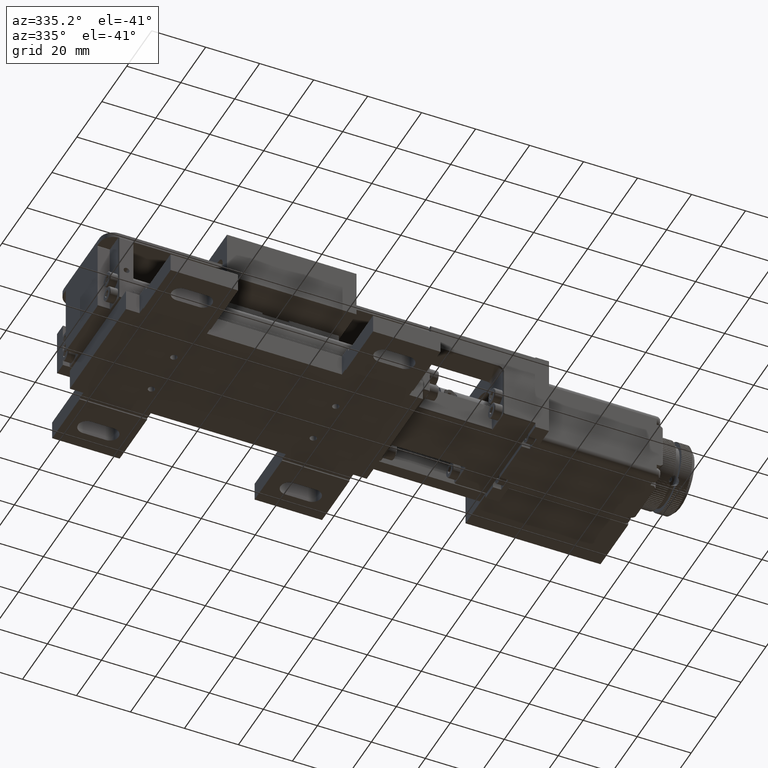
[diagram: clean part render]
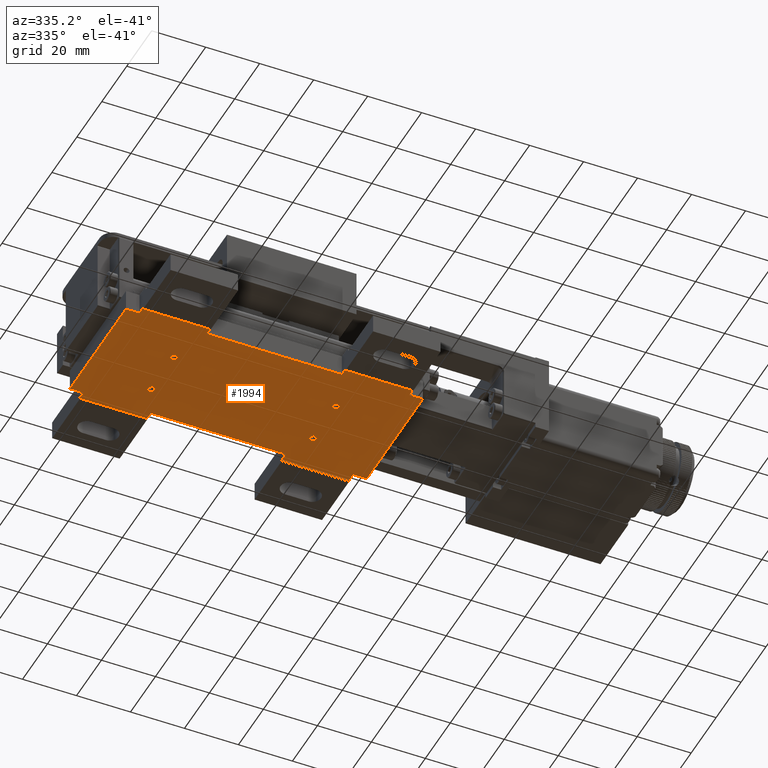
[diagram: same view with one face highlighted and labeled with its STEP entity id]
A machine part, auxiliary view. The second image highlights one B-rep face of the part: STEP entity #1994.
In plain terms, the highlighted planar face has unit normal (0, 0, -1).
Its self-contained STEP definition (entity closure, byte-faithful):
#25=FACE_BOUND('',#6651,.T.);
#26=FACE_BOUND('',#6652,.T.);
#27=FACE_BOUND('',#6653,.T.);
#28=FACE_BOUND('',#6654,.T.);
#526=PLANE('',#41079);
#1994=ADVANCED_FACE('',(#4317,#25,#26,#27,#28),#526,.T.);
#4317=FACE_OUTER_BOUND('',#6650,.T.);
#6650=EDGE_LOOP('',(#9429,#9430,#9431,#9432,#9433,#9434,#9435,#9436,#9437,
#9438,#9439,#9440,#9441,#9442,#9443,#9444,#9445,#9446,#9447,#9448));
#6651=EDGE_LOOP('',(#9449,#9450));
#6652=EDGE_LOOP('',(#9451,#9452));
#6653=EDGE_LOOP('',(#9453,#9454));
#6654=EDGE_LOOP('',(#9455,#9456));
#9429=ORIENTED_EDGE('',*,*,#22715,.F.);
#9430=ORIENTED_EDGE('',*,*,#22703,.F.);
#9431=ORIENTED_EDGE('',*,*,#22709,.T.);
#9432=ORIENTED_EDGE('',*,*,#22716,.F.);
#9433=ORIENTED_EDGE('',*,*,#22717,.F.);
#9434=ORIENTED_EDGE('',*,*,#22698,.F.);
#9435=ORIENTED_EDGE('',*,*,#22707,.T.);
#9436=ORIENTED_EDGE('',*,*,#22718,.F.);
#9437=ORIENTED_EDGE('',*,*,#22618,.F.);
#9438=ORIENTED_EDGE('',*,*,#22580,.T.);
#9439=ORIENTED_EDGE('',*,*,#22583,.F.);
#9440=ORIENTED_EDGE('',*,*,#22589,.F.);
#9441=ORIENTED_EDGE('',*,*,#22712,.T.);
#9442=ORIENTED_EDGE('',*,*,#22593,.F.);
#9443=ORIENTED_EDGE('',*,*,#22599,.F.);
#9444=ORIENTED_EDGE('',*,*,#22605,.F.);
#9445=ORIENTED_EDGE('',*,*,#22713,.T.);
#9446=ORIENTED_EDGE('',*,*,#22609,.F.);
#9447=ORIENTED_EDGE('',*,*,#22615,.F.);
#9448=ORIENTED_EDGE('',*,*,#22617,.T.);
#9449=ORIENTED_EDGE('',*,*,#22662,.T.);
#9450=ORIENTED_EDGE('',*,*,#22663,.T.);
#9451=ORIENTED_EDGE('',*,*,#22666,.T.);
#9452=ORIENTED_EDGE('',*,*,#22667,.T.);
#9453=ORIENTED_EDGE('',*,*,#22670,.T.);
#9454=ORIENTED_EDGE('',*,*,#22671,.T.);
#9455=ORIENTED_EDGE('',*,*,#22674,.T.);
#9456=ORIENTED_EDGE('',*,*,#22675,.T.);
#22580=EDGE_CURVE('',#35994,#35993,#29285,.T.);
#22583=EDGE_CURVE('',#35995,#35993,#29288,.T.);
#22589=EDGE_CURVE('',#36000,#35995,#29294,.T.);
#22593=EDGE_CURVE('',#36002,#36003,#29298,.T.);
#22599=EDGE_CURVE('',#36007,#36002,#29304,.T.);
#22605=EDGE_CURVE('',#36012,#36007,#29310,.T.);
#22609=EDGE_CURVE('',#36014,#36015,#29314,.T.);
#22615=EDGE_CURVE('',#36019,#36014,#29320,.T.);
#22617=EDGE_CURVE('',#36019,#36020,#29322,.T.);
#22618=EDGE_CURVE('',#35994,#36021,#29323,.T.);
#22662=EDGE_CURVE('',#36054,#36055,#33701,.T.);
#22663=EDGE_CURVE('',#36055,#36054,#33702,.T.);
#22666=EDGE_CURVE('',#36056,#36057,#33704,.T.);
#22667=EDGE_CURVE('',#36057,#36056,#33705,.T.);
#22670=EDGE_CURVE('',#36058,#36059,#33707,.T.);
#22671=EDGE_CURVE('',#36059,#36058,#33708,.T.);
#22674=EDGE_CURVE('',#36060,#36061,#33710,.T.);
#22675=EDGE_CURVE('',#36061,#36060,#33711,.T.);
#22698=EDGE_CURVE('',#36072,#36073,#29375,.T.);
#22703=EDGE_CURVE('',#36076,#36077,#29380,.T.);
#22707=EDGE_CURVE('',#36072,#36079,#29384,.T.);
#22709=EDGE_CURVE('',#36076,#36080,#29386,.T.);
#22712=EDGE_CURVE('',#36000,#36003,#29389,.T.);
#22713=EDGE_CURVE('',#36012,#36015,#29390,.T.);
#22715=EDGE_CURVE('',#36077,#36020,#29392,.T.);
#22716=EDGE_CURVE('',#36082,#36080,#29393,.T.);
#22717=EDGE_CURVE('',#36073,#36082,#29394,.T.);
#22718=EDGE_CURVE('',#36021,#36079,#29395,.T.);
#29285=B_SPLINE_CURVE_WITH_KNOTS('',1,(#61805,#61806),.UNSPECIFIED.,.F.,
 .F.,(2,2),(-45.,0.),.UNSPECIFIED.);
#29288=B_SPLINE_CURVE_WITH_KNOTS('',1,(#61811,#61812),.UNSPECIFIED.,.F.,
 .F.,(2,2),(0.,4.99999999999993),.UNSPECIFIED.);
#29294=B_SPLINE_CURVE_WITH_KNOTS('',1,(#61823,#61824),.UNSPECIFIED.,.F.,
 .F.,(2,2),(0.,2.9999999999999),.UNSPECIFIED.);
#29298=B_SPLINE_CURVE_WITH_KNOTS('',1,(#61831,#61832),.UNSPECIFIED.,.F.,
 .F.,(2,2),(0.,3.),.UNSPECIFIED.);
#29304=B_SPLINE_CURVE_WITH_KNOTS('',1,(#61843,#61844),.UNSPECIFIED.,.F.,
 .F.,(2,2),(0.,50.0000000000001),.UNSPECIFIED.);
#29310=B_SPLINE_CURVE_WITH_KNOTS('',1,(#61855,#61856),.UNSPECIFIED.,.F.,
 .F.,(2,2),(0.,3.),.UNSPECIFIED.);
#29314=B_SPLINE_CURVE_WITH_KNOTS('',1,(#61863,#61864),.UNSPECIFIED.,.F.,
 .F.,(2,2),(0.,3.),.UNSPECIFIED.);
#29320=B_SPLINE_CURVE_WITH_KNOTS('',1,(#61875,#61876),.UNSPECIFIED.,.F.,
 .F.,(2,2),(0.,5.),.UNSPECIFIED.);
#29322=B_SPLINE_CURVE_WITH_KNOTS('',1,(#61879,#61880),.UNSPECIFIED.,.F.,
 .F.,(2,2),(-45.,0.),.UNSPECIFIED.);
#29323=B_SPLINE_CURVE_WITH_KNOTS('',1,(#61881,#61882),.UNSPECIFIED.,.F.,
 .F.,(2,2),(0.,4.99999999999997),.UNSPECIFIED.);
#29375=B_SPLINE_CURVE_WITH_KNOTS('',1,(#62125,#62126),.UNSPECIFIED.,.F.,
 .F.,(2,2),(0.,3.00000000000003),.UNSPECIFIED.);
#29380=B_SPLINE_CURVE_WITH_KNOTS('',1,(#62135,#62136),.UNSPECIFIED.,.F.,
 .F.,(2,2),(0.,3.),.UNSPECIFIED.);
#29384=B_SPLINE_CURVE_WITH_KNOTS('',1,(#62143,#62144),.UNSPECIFIED.,.F.,
 .F.,(2,2),(-25.,0.),.UNSPECIFIED.);
#29386=B_SPLINE_CURVE_WITH_KNOTS('',1,(#62147,#62148),.UNSPECIFIED.,.F.,
 .F.,(2,2),(-25.0000000000001,0.),.UNSPECIFIED.);
#29389=B_SPLINE_CURVE_WITH_KNOTS('',1,(#62153,#62154),.UNSPECIFIED.,.F.,
 .F.,(2,2),(-25.,0.),.UNSPECIFIED.);
#29390=B_SPLINE_CURVE_WITH_KNOTS('',1,(#62155,#62156),.UNSPECIFIED.,.F.,
 .F.,(2,2),(-25.0000000000003,0.),.UNSPECIFIED.);
#29392=B_SPLINE_CURVE_WITH_KNOTS('',1,(#62159,#62160),.UNSPECIFIED.,.F.,
 .F.,(2,2),(-5.,0.),.UNSPECIFIED.);
#29393=B_SPLINE_CURVE_WITH_KNOTS('',1,(#62161,#62162),.UNSPECIFIED.,.F.,
 .F.,(2,2),(-3.00000000000001,0.),.UNSPECIFIED.);
#29394=B_SPLINE_CURVE_WITH_KNOTS('',1,(#62163,#62164),.UNSPECIFIED.,.F.,
 .F.,(2,2),(-50.,0.),.UNSPECIFIED.);
#29395=B_SPLINE_CURVE_WITH_KNOTS('',1,(#62165,#62166),.UNSPECIFIED.,.F.,
 .F.,(2,2),(-3.00000000000007,0.),.UNSPECIFIED.);
#33701=(
BOUNDED_CURVE()
B_SPLINE_CURVE(2,(#62020,#62021,#62022,#62023,#62024),.UNSPECIFIED.,.F.,
 .F.)
B_SPLINE_CURVE_WITH_KNOTS((3,2,3),(-3.86258816758863,-1.93129408379432,
0.),.UNSPECIFIED.)
CURVE()
GEOMETRIC_REPRESENTATION_ITEM()
RATIONAL_B_SPLINE_CURVE((1.,0.707106781186548,1.,0.707106781186548,1.))
REPRESENTATION_ITEM('')
);
#33702=(
BOUNDED_CURVE()
B_SPLINE_CURVE(2,(#62025,#62026,#62027,#62028,#62029),.UNSPECIFIED.,.F.,
 .F.)
B_SPLINE_CURVE_WITH_KNOTS((3,2,3),(-3.86258816758867,-1.93129408379433,
0.),.UNSPECIFIED.)
CURVE()
GEOMETRIC_REPRESENTATION_ITEM()
RATIONAL_B_SPLINE_CURVE((1.,0.707106781186547,1.,0.707106781186547,1.))
REPRESENTATION_ITEM('')
);
#33704=(
BOUNDED_CURVE()
B_SPLINE_CURVE(2,(#62037,#62038,#62039,#62040,#62041),.UNSPECIFIED.,.F.,
 .F.)
B_SPLINE_CURVE_WITH_KNOTS((3,2,3),(-3.86258816758857,-1.93129408379428,
0.),.UNSPECIFIED.)
CURVE()
GEOMETRIC_REPRESENTATION_ITEM()
RATIONAL_B_SPLINE_CURVE((1.,0.707106781186548,1.,0.707106781186548,1.))
REPRESENTATION_ITEM('')
);
#33705=(
BOUNDED_CURVE()
B_SPLINE_CURVE(2,(#62042,#62043,#62044,#62045,#62046),.UNSPECIFIED.,.F.,
 .F.)
B_SPLINE_CURVE_WITH_KNOTS((3,2,3),(-3.8625881675887,-1.93129408379435,0.),
 .UNSPECIFIED.)
CURVE()
GEOMETRIC_REPRESENTATION_ITEM()
RATIONAL_B_SPLINE_CURVE((1.,0.707106781186545,1.,0.707106781186545,1.))
REPRESENTATION_ITEM('')
);
#33707=(
BOUNDED_CURVE()
B_SPLINE_CURVE(2,(#62054,#62055,#62056,#62057,#62058),.UNSPECIFIED.,.F.,
 .F.)
B_SPLINE_CURVE_WITH_KNOTS((3,2,3),(-3.86258816758863,-1.93129408379432,
0.),.UNSPECIFIED.)
CURVE()
GEOMETRIC_REPRESENTATION_ITEM()
RATIONAL_B_SPLINE_CURVE((1.,0.707106781186548,1.,0.707106781186548,1.))
REPRESENTATION_ITEM('')
);
#33708=(
BOUNDED_CURVE()
B_SPLINE_CURVE(2,(#62059,#62060,#62061,#62062,#62063),.UNSPECIFIED.,.F.,
 .F.)
B_SPLINE_CURVE_WITH_KNOTS((3,2,3),(-3.86258816758868,-1.93129408379434,
0.),.UNSPECIFIED.)
CURVE()
GEOMETRIC_REPRESENTATION_ITEM()
RATIONAL_B_SPLINE_CURVE((1.,0.707106781186545,1.,0.707106781186545,1.))
REPRESENTATION_ITEM('')
);
#33710=(
BOUNDED_CURVE()
B_SPLINE_CURVE(2,(#62071,#62072,#62073,#62074,#62075),.UNSPECIFIED.,.F.,
 .F.)
B_SPLINE_CURVE_WITH_KNOTS((3,2,3),(-3.86258816758861,-1.9312940837943,0.),
 .UNSPECIFIED.)
CURVE()
GEOMETRIC_REPRESENTATION_ITEM()
RATIONAL_B_SPLINE_CURVE((1.,0.707106781186548,1.,0.707106781186548,1.))
REPRESENTATION_ITEM('')
);
#33711=(
BOUNDED_CURVE()
B_SPLINE_CURVE(2,(#62076,#62077,#62078,#62079,#62080),.UNSPECIFIED.,.F.,
 .F.)
B_SPLINE_CURVE_WITH_KNOTS((3,2,3),(-3.86258816758865,-1.93129408379433,
0.),.UNSPECIFIED.)
CURVE()
GEOMETRIC_REPRESENTATION_ITEM()
RATIONAL_B_SPLINE_CURVE((1.,0.707106781186548,1.,0.707106781186548,1.))
REPRESENTATION_ITEM('')
);
#35993=VERTEX_POINT('',#57310);
#35994=VERTEX_POINT('',#57311);
#35995=VERTEX_POINT('',#57312);
#36000=VERTEX_POINT('',#57317);
#36002=VERTEX_POINT('',#57319);
#36003=VERTEX_POINT('',#57320);
#36007=VERTEX_POINT('',#57324);
#36012=VERTEX_POINT('',#57329);
#36014=VERTEX_POINT('',#57331);
#36015=VERTEX_POINT('',#57332);
#36019=VERTEX_POINT('',#57336);
#36020=VERTEX_POINT('',#57337);
#36021=VERTEX_POINT('',#57338);
#36054=VERTEX_POINT('',#57371);
#36055=VERTEX_POINT('',#57372);
#36056=VERTEX_POINT('',#57373);
#36057=VERTEX_POINT('',#57374);
#36058=VERTEX_POINT('',#57375);
#36059=VERTEX_POINT('',#57376);
#36060=VERTEX_POINT('',#57377);
#36061=VERTEX_POINT('',#57378);
#36072=VERTEX_POINT('',#57389);
#36073=VERTEX_POINT('',#57390);
#36076=VERTEX_POINT('',#57393);
#36077=VERTEX_POINT('',#57394);
#36079=VERTEX_POINT('',#57396);
#36080=VERTEX_POINT('',#57397);
#36082=VERTEX_POINT('',#57399);
#41079=AXIS2_PLACEMENT_3D('',#45408,#43135,$);
#43135=DIRECTION('',(0.,0.,-1.));
#45408=CARTESIAN_POINT('',(15.1200011422146,30.7199990971528,0.502621502014046));
#57310=CARTESIAN_POINT('',(-105.999998857791,22.4999990971523,0.50262150201246));
#57311=CARTESIAN_POINT('',(-105.999998857795,-22.5000009028476,0.502621502012673));
#57312=CARTESIAN_POINT('',(-100.999998857791,22.4999990971519,0.50262150201246));
#57317=CARTESIAN_POINT('',(-100.999998857791,25.4999990971518,0.50262150201246));
#57319=CARTESIAN_POINT('',(-75.9999988577911,22.4999990971495,0.502621502012886));
#57320=CARTESIAN_POINT('',(-75.9999988577908,25.4999990971495,0.502621502012886));
#57324=CARTESIAN_POINT('',(-25.999998857791,22.4999990971447,0.502621502013497));
#57329=CARTESIAN_POINT('',(-25.9999988577908,25.4999990971447,0.502621502013497));
#57331=CARTESIAN_POINT('',(-0.999998857791539,22.4999990971424,0.502621502013902));
#57332=CARTESIAN_POINT('',(-0.999998857790516,25.4999990971424,0.502621502013795));
#57336=CARTESIAN_POINT('',(4.00000114220846,22.4999990971419,0.502621502013902));
#57337=CARTESIAN_POINT('',(4.00000114220448,-22.500000902858,0.5026215020142));
#57338=CARTESIAN_POINT('',(-100.999998857795,-22.5000009028481,0.502621502012765));
#57371=CARTESIAN_POINT('',(-79.7704988577938,-6.80000090285006,0.502621502012971));
#57372=CARTESIAN_POINT('',(-82.2294988577938,-6.80000090284986,0.502621502012872));
#57373=CARTESIAN_POINT('',(-19.8108440977453,11.1999538821322,0.502621502013682));
#57374=CARTESIAN_POINT('',(-22.2698440977453,11.1999538821324,0.502621502013589));
#57375=CARTESIAN_POINT('',(-79.7704988577921,11.1999990971499,0.502621502012865));
#57376=CARTESIAN_POINT('',(-82.2294988577921,11.1999990971501,0.502621502012772));
#57377=CARTESIAN_POINT('',(-19.7704988577938,-6.80000090285576,0.502621502013788));
#57378=CARTESIAN_POINT('',(-22.2294988577938,-6.80000090285556,0.502621502013689));
#57389=CARTESIAN_POINT('',(-75.9999988577956,-25.5000009028505,0.502621502013085));
#57390=CARTESIAN_POINT('',(-75.9999988577953,-22.5000009028505,0.502621502013085));
#57393=CARTESIAN_POINT('',(-0.999998857795518,-25.5000009028576,0.502621502014108));
#57394=CARTESIAN_POINT('',(-0.999998857795518,-22.5000009028576,0.502621502014108));
#57396=CARTESIAN_POINT('',(-100.999998857796,-25.5000009028482,0.502621502012765));
#57397=CARTESIAN_POINT('',(-25.9999988577956,-25.5000009028552,0.502621502013788));
#57399=CARTESIAN_POINT('',(-25.9999988577953,-22.5000009028552,0.502621502013788));
#61805=CARTESIAN_POINT('',(-105.999998857795,-22.5000009028476,0.502621502012673));
#61806=CARTESIAN_POINT('',(-105.999998857791,22.4999990971523,0.50262150201246));
#61811=CARTESIAN_POINT('',(-100.999998857791,22.4999990971519,0.50262150201246));
#61812=CARTESIAN_POINT('',(-105.999998857791,22.4999990971523,0.50262150201246));
#61823=CARTESIAN_POINT('',(-100.999998857791,25.4999990971518,0.50262150201246));
#61824=CARTESIAN_POINT('',(-100.999998857791,22.4999990971519,0.50262150201246));
#61831=CARTESIAN_POINT('',(-75.9999988577911,22.4999990971495,0.502621502012886));
#61832=CARTESIAN_POINT('',(-75.9999988577908,25.4999990971495,0.502621502012886));
#61843=CARTESIAN_POINT('',(-25.999998857791,22.4999990971447,0.502621502013497));
#61844=CARTESIAN_POINT('',(-75.9999988577911,22.4999990971495,0.502621502012886));
#61855=CARTESIAN_POINT('',(-25.9999988577908,25.4999990971447,0.502621502013497));
#61856=CARTESIAN_POINT('',(-25.999998857791,22.4999990971447,0.502621502013497));
#61863=CARTESIAN_POINT('',(-0.999998857791539,22.4999990971424,0.502621502013902));
#61864=CARTESIAN_POINT('',(-0.999998857790516,25.4999990971424,0.502621502013795));
#61875=CARTESIAN_POINT('',(4.00000114220846,22.4999990971419,0.502621502013902));
#61876=CARTESIAN_POINT('',(-0.999998857791539,22.4999990971424,0.502621502013902));
#61879=CARTESIAN_POINT('',(4.00000114220846,22.4999990971419,0.502621502013902));
#61880=CARTESIAN_POINT('',(4.00000114220448,-22.500000902858,0.5026215020142));
#61881=CARTESIAN_POINT('',(-105.999998857795,-22.5000009028476,0.502621502012673));
#61882=CARTESIAN_POINT('',(-100.999998857795,-22.5000009028481,0.502621502012765));
#62020=CARTESIAN_POINT('',(-79.7704988577938,-6.80000090285006,0.502621502012972));
#62021=CARTESIAN_POINT('',(-79.7704988577937,-5.57050090285006,0.502621502012965));
#62022=CARTESIAN_POINT('',(-80.9999988577937,-5.57050090284996,0.502621502012915));
#62023=CARTESIAN_POINT('',(-82.2294988577937,-5.57050090284987,0.502621502012865));
#62024=CARTESIAN_POINT('',(-82.2294988577938,-6.80000090284986,0.502621502012871));
#62025=CARTESIAN_POINT('',(-82.2294988577938,-6.80000090284986,0.502621502012871));
#62026=CARTESIAN_POINT('',(-82.2294988577939,-8.02950090284987,0.502621502012878));
#62027=CARTESIAN_POINT('',(-80.9999988577939,-8.02950090284997,0.502621502012928));
#62028=CARTESIAN_POINT('',(-79.7704988577939,-8.02950090285007,0.502621502012978));
#62029=CARTESIAN_POINT('',(-79.7704988577938,-6.80000090285006,0.502621502012972));
#62037=CARTESIAN_POINT('',(-19.8108440977453,11.1999538821322,0.502621502013689));
#62038=CARTESIAN_POINT('',(-19.8108440977452,12.4294538821322,0.502621502013682));
#62039=CARTESIAN_POINT('',(-21.0403440977452,12.4294538821323,0.502621502013632));
#62040=CARTESIAN_POINT('',(-22.2698440977452,12.4294538821324,0.502621502013582));
#62041=CARTESIAN_POINT('',(-22.2698440977453,11.1999538821324,0.502621502013589));
#62042=CARTESIAN_POINT('',(-22.2698440977453,11.1999538821324,0.502621502013589));
#62043=CARTESIAN_POINT('',(-22.2698440977454,9.97045388213243,0.502621502013596));
#62044=CARTESIAN_POINT('',(-21.0403440977454,9.97045388213233,0.502621502013639));
#62045=CARTESIAN_POINT('',(-19.8108440977454,9.97045388213223,0.502621502013682));
#62046=CARTESIAN_POINT('',(-19.8108440977453,11.1999538821322,0.502621502013675));
#62054=CARTESIAN_POINT('',(-79.7704988577921,11.1999990971499,0.502621502012872));
#62055=CARTESIAN_POINT('',(-79.770498857792,12.4294990971499,0.502621502012865));
#62056=CARTESIAN_POINT('',(-80.999998857792,12.42949909715,0.502621502012815));
#62057=CARTESIAN_POINT('',(-82.229498857792,12.4294990971501,0.502621502012765));
#62058=CARTESIAN_POINT('',(-82.2294988577921,11.1999990971501,0.502621502012772));
#62059=CARTESIAN_POINT('',(-82.2294988577921,11.1999990971501,0.502621502012772));
#62060=CARTESIAN_POINT('',(-82.2294988577923,9.97049909715012,0.502621502012779));
#62061=CARTESIAN_POINT('',(-80.9999988577922,9.97049909715003,0.502621502012822));
#62062=CARTESIAN_POINT('',(-79.7704988577922,9.97049909714992,0.502621502012865));
#62063=CARTESIAN_POINT('',(-79.7704988577921,11.1999990971499,0.502621502012858));
#62071=CARTESIAN_POINT('',(-19.7704988577938,-6.80000090285576,0.502621502013789));
#62072=CARTESIAN_POINT('',(-19.7704988577937,-5.57050090285577,0.502621502013782));
#62073=CARTESIAN_POINT('',(-20.9999988577937,-5.57050090285567,0.502621502013732));
#62074=CARTESIAN_POINT('',(-22.2294988577937,-5.57050090285557,0.502621502013682));
#62075=CARTESIAN_POINT('',(-22.2294988577938,-6.80000090285556,0.502621502013688));
#62076=CARTESIAN_POINT('',(-22.2294988577938,-6.80000090285556,0.502621502013688));
#62077=CARTESIAN_POINT('',(-22.2294988577939,-8.02950090285556,0.502621502013695));
#62078=CARTESIAN_POINT('',(-20.9999988577939,-8.02950090285566,0.502621502013745));
#62079=CARTESIAN_POINT('',(-19.7704988577939,-8.02950090285576,0.502621502013795));
#62080=CARTESIAN_POINT('',(-19.7704988577938,-6.80000090285576,0.502621502013789));
#62125=CARTESIAN_POINT('',(-75.9999988577956,-25.5000009028505,0.502621502013085));
#62126=CARTESIAN_POINT('',(-75.9999988577953,-22.5000009028505,0.502621502013085));
#62135=CARTESIAN_POINT('',(-0.999998857795518,-25.5000009028576,0.502621502014108));
#62136=CARTESIAN_POINT('',(-0.999998857795518,-22.5000009028576,0.502621502014108));
#62143=CARTESIAN_POINT('',(-75.9999988577956,-25.5000009028505,0.502621502013085));
#62144=CARTESIAN_POINT('',(-100.999998857796,-25.5000009028482,0.502621502012765));
#62147=CARTESIAN_POINT('',(-0.999998857795518,-25.5000009028576,0.502621502014108));
#62148=CARTESIAN_POINT('',(-25.9999988577956,-25.5000009028552,0.502621502013788));
#62153=CARTESIAN_POINT('',(-100.999998857791,25.4999990971518,0.50262150201246));
#62154=CARTESIAN_POINT('',(-75.9999988577908,25.4999990971495,0.502621502012886));
#62155=CARTESIAN_POINT('',(-25.9999988577908,25.4999990971447,0.502621502013497));
#62156=CARTESIAN_POINT('',(-0.999998857790516,25.4999990971424,0.502621502013795));
#62159=CARTESIAN_POINT('',(-0.999998857795518,-22.5000009028576,0.502621502014108));
#62160=CARTESIAN_POINT('',(4.00000114220448,-22.500000902858,0.5026215020142));
#62161=CARTESIAN_POINT('',(-25.9999988577953,-22.5000009028552,0.502621502013788));
#62162=CARTESIAN_POINT('',(-25.9999988577956,-25.5000009028552,0.502621502013788));
#62163=CARTESIAN_POINT('',(-75.9999988577953,-22.5000009028505,0.502621502013085));
#62164=CARTESIAN_POINT('',(-25.9999988577953,-22.5000009028552,0.502621502013788));
#62165=CARTESIAN_POINT('',(-100.999998857795,-22.5000009028481,0.502621502012765));
#62166=CARTESIAN_POINT('',(-100.999998857796,-25.5000009028482,0.502621502012765));